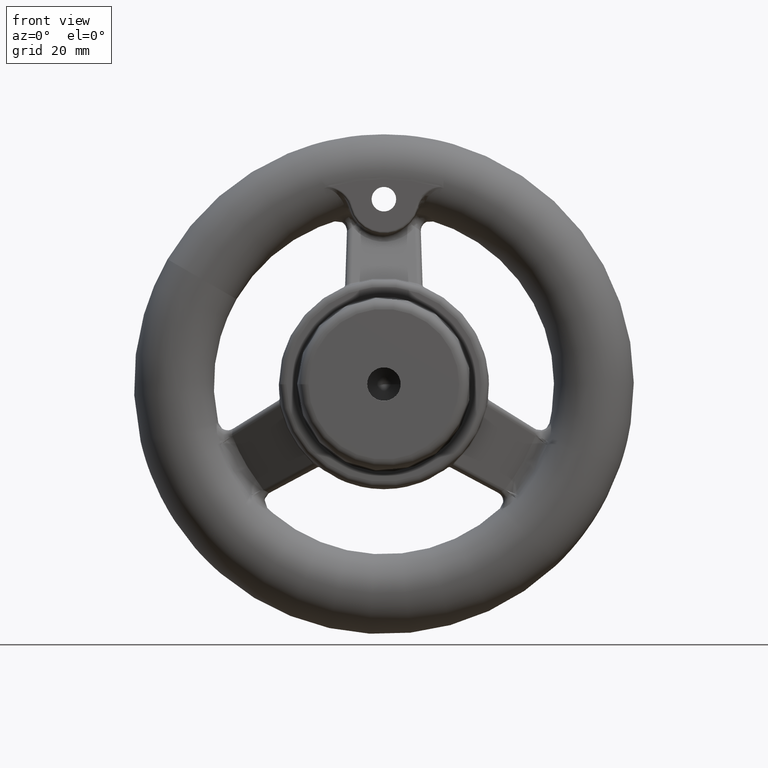
[diagram: clean part render]
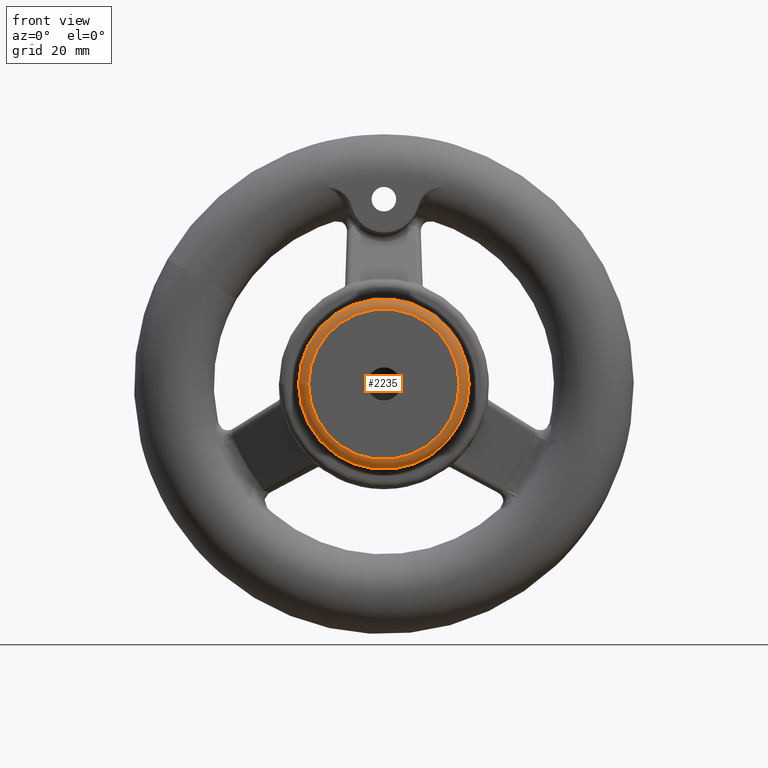
[diagram: same view with one face highlighted and labeled with its STEP entity id]
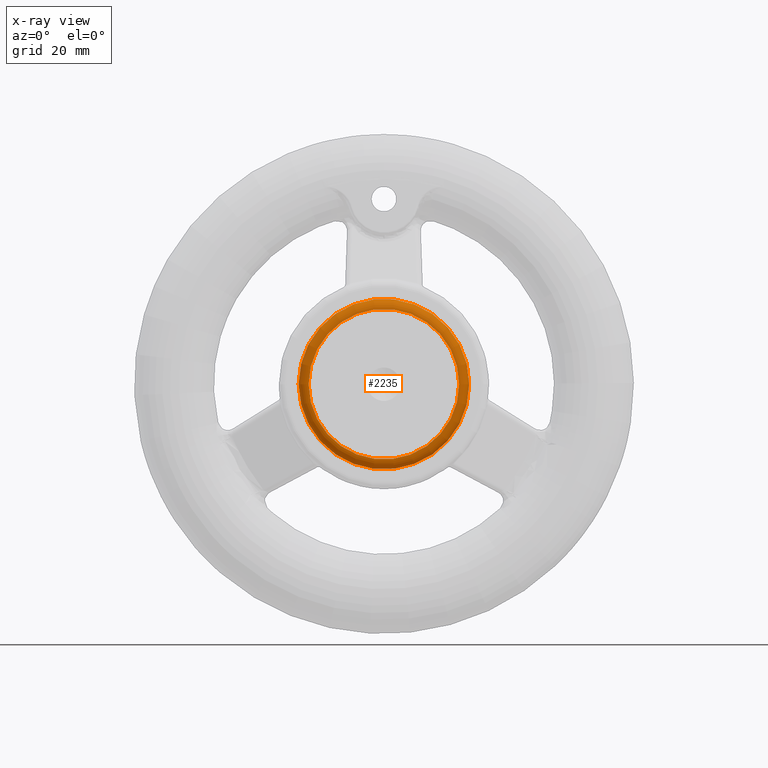
[diagram: x-ray of the same camera — body ghosted, the highlighted face saturated]
A machine part, front view. The second image highlights one B-rep face of the part: STEP entity #2235.
The next image is the same camera in x-ray: the body ghosted, the highlighted face saturated — about 0% of this face is hidden behind the body in this view.
In plain terms, the highlighted toroidal blend (fillet) surface has major radius 15.0548 mm and minor (blend) radius 2 mm.
Its self-contained STEP definition (entity closure, byte-faithful):
#396=TOROIDAL_SURFACE('',#2400,15.0547840994034,2.);
#414=FACE_BOUND('',#621,.T.);
#459=FACE_OUTER_BOUND('',#620,.T.);
#620=EDGE_LOOP('',(#1508));
#621=EDGE_LOOP('',(#1509));
#795=CIRCLE('',#2401,15.0547840994034);
#796=CIRCLE('',#2402,17.0540129407089);
#931=VERTEX_POINT('',#3088);
#932=VERTEX_POINT('',#3090);
#1144=EDGE_CURVE('',#931,#931,#795,.T.);
#1145=EDGE_CURVE('',#932,#932,#796,.T.);
#1508=ORIENTED_EDGE('',*,*,#1144,.T.);
#1509=ORIENTED_EDGE('',*,*,#1145,.T.);
#2235=ADVANCED_FACE('',(#459,#414),#396,.T.);
#2400=AXIS2_PLACEMENT_3D('',#3087,#2620,#2621);
#2401=AXIS2_PLACEMENT_3D('',#3089,#2622,#2623);
#2402=AXIS2_PLACEMENT_3D('',#3091,#2624,#2625);
#2620=DIRECTION('center_axis',(0.,1.,0.));
#2621=DIRECTION('ref_axis',(0.,0.,1.));
#2622=DIRECTION('center_axis',(0.,1.,0.));
#2623=DIRECTION('ref_axis',(1.,0.,0.));
#2624=DIRECTION('center_axis',(0.,-1.,0.));
#2625=DIRECTION('ref_axis',(1.,0.,-6.12323399573677E-17));
#3087=CARTESIAN_POINT('Origin',(0.,-26.,0.));
#3088=CARTESIAN_POINT('',(-15.0547840994034,-28.,1.84367931591889E-15));
#3089=CARTESIAN_POINT('Origin',(0.,-28.,0.));
#3090=CARTESIAN_POINT('',(-17.0540129407089,-26.0555341344807,-2.08851423604567E-15));
#3091=CARTESIAN_POINT('Origin',(0.,-26.0555341344807,-1.04425711802283E-15));